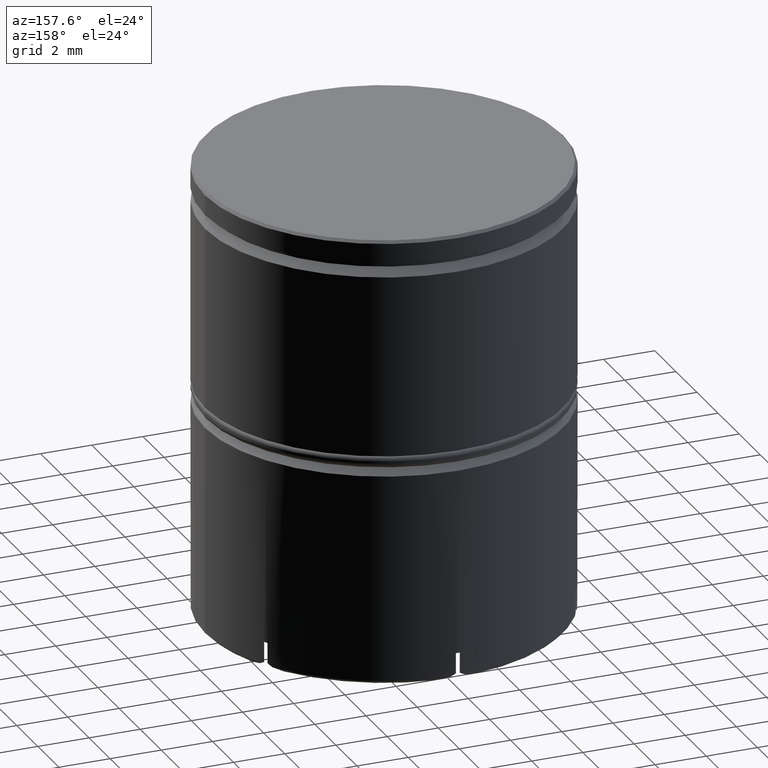
[diagram: clean part render]
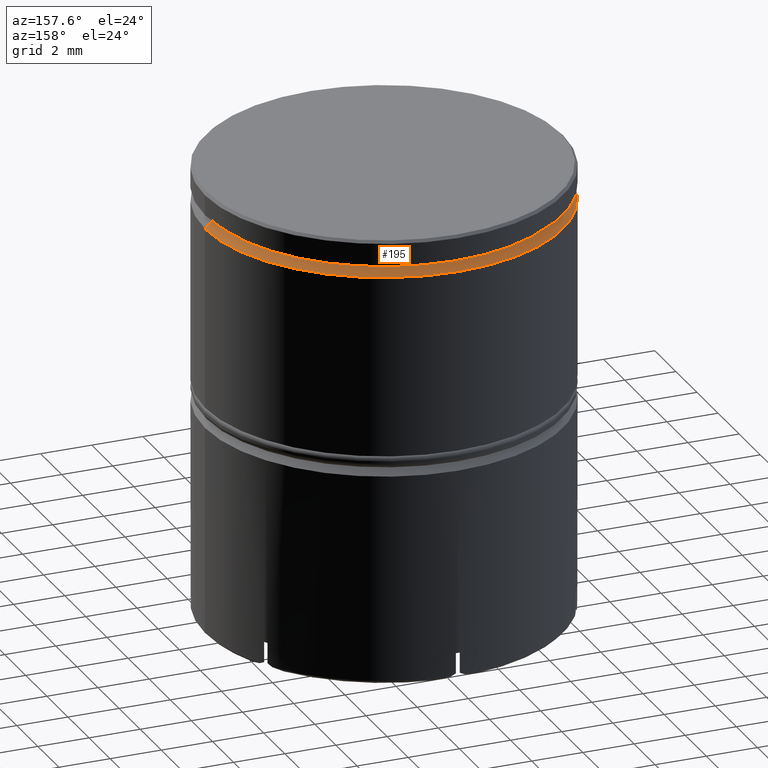
[diagram: same view with one face highlighted and labeled with its STEP entity id]
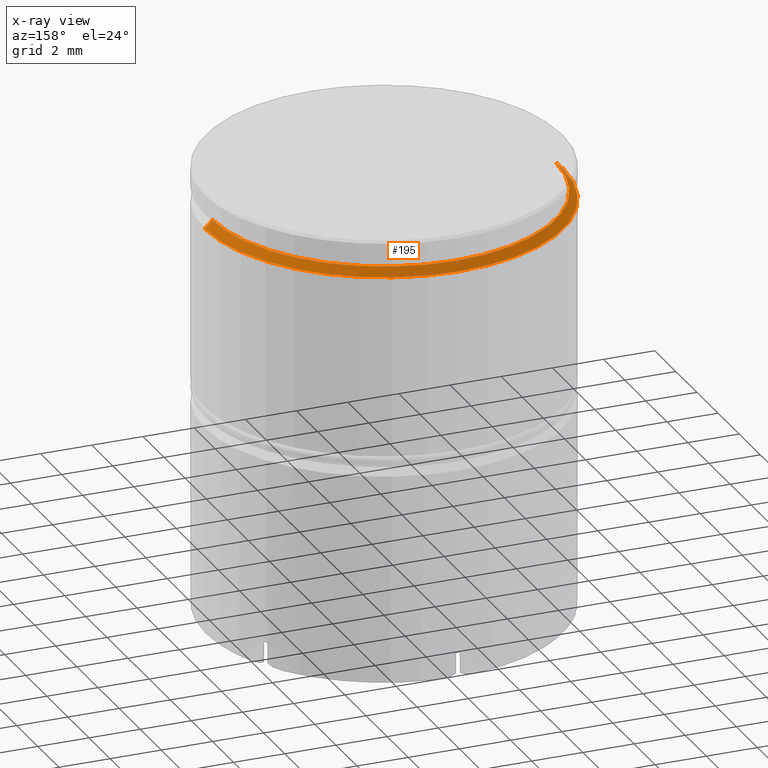
[diagram: x-ray of the same camera — body ghosted, the highlighted face saturated]
A machine part, auxiliary view. The second image highlights one B-rep face of the part: STEP entity #195.
The next image is the same camera in x-ray: the body ghosted, the highlighted face saturated — about 1% of this face is hidden behind the body in this view.
In plain terms, the highlighted conical surface has half-angle 45 deg.
Its self-contained STEP definition (entity closure, byte-faithful):
#30 = CARTESIAN_POINT ( 'NONE',  ( -6.700000000000001066, 8.205133554287267548E-16, -1.125000000000000222 ) ) ;
#78 = DIRECTION ( 'NONE',  ( -0.000000000000000000, -0.000000000000000000, 1.000000000000000000 ) ) ;
#98 = CONICAL_SURFACE ( 'NONE', #1103, 6.699999999999997513, 0.7853981633974453924 ) ;
#195 = ADVANCED_FACE ( 'NONE', ( #927 ), #98, .T. ) ;
#244 = CARTESIAN_POINT ( 'NONE',  ( 6.699999999999997513, 8.205133554287261632E-16, -1.125000000000000222 ) ) ;
#329 = ORIENTED_EDGE ( 'NONE', *, *, #502, .F. ) ;
#330 = CARTESIAN_POINT ( 'NONE',  ( -6.699999999999997513, 0.000000000000000000, -1.125000000000000222 ) ) ;
#341 = VERTEX_POINT ( 'NONE', #1414 ) ;
#370 = AXIS2_PLACEMENT_3D ( 'NONE', #1057, #78, #554 ) ;
#381 = DIRECTION ( 'NONE',  ( 0.000000000000000000, 0.000000000000000000, -1.000000000000000000 ) ) ;
#420 = CARTESIAN_POINT ( 'NONE',  ( 6.700000000000001066, 0.000000000000000000, -1.125000000000000222 ) ) ;
#491 = EDGE_CURVE ( 'NONE', #1169, #1589, #1084, .T. ) ;
#502 = EDGE_CURVE ( 'NONE', #1589, #341, #703, .T. ) ;
#536 = ORIENTED_EDGE ( 'NONE', *, *, #674, .F. ) ;
#554 = DIRECTION ( 'NONE',  ( 1.000000000000000000, 0.000000000000000000, 0.000000000000000000 ) ) ;
#586 = VECTOR ( 'NONE', #736, 1000.000000000000114 ) ;
#641 = DIRECTION ( 'NONE',  ( 1.000000000000000000, 0.000000000000000000, 0.000000000000000000 ) ) ;
#674 = EDGE_CURVE ( 'NONE', #341, #1112, #1031, .T. ) ;
#703 = LINE ( 'NONE', #330, #586 ) ;
#736 = DIRECTION ( 'NONE',  ( -0.7071067811865455743, 0.000000000000000000, -0.7071067811865495711 ) ) ;
#762 = DIRECTION ( 'NONE',  ( 0.7071067811865455743, 8.659560562354906974E-17, -0.7071067811865495711 ) ) ;
#830 = CARTESIAN_POINT ( 'NONE',  ( 0.000000000000000000, 0.000000000000000000, -1.125000000000000222 ) ) ;
#833 = AXIS2_PLACEMENT_3D ( 'NONE', #1391, #381, #641 ) ;
#846 = ORIENTED_EDGE ( 'NONE', *, *, #491, .F. ) ;
#927 = FACE_OUTER_BOUND ( 'NONE', #1450, .T. ) ;
#975 = EDGE_CURVE ( 'NONE', #1169, #1112, #1375, .T. ) ;
#1027 = CARTESIAN_POINT ( 'NONE',  ( 7.000000000000000888, 0.000000000000000000, -1.425000000000005151 ) ) ;
#1031 = CIRCLE ( 'NONE', #833, 7.000000000000000888 ) ;
#1048 = DIRECTION ( 'NONE',  ( -1.000000000000000000, 0.000000000000000000, 0.000000000000000000 ) ) ;
#1057 = CARTESIAN_POINT ( 'NONE',  ( 0.000000000000000000, 0.000000000000000000, -1.125000000000000222 ) ) ;
#1084 = CIRCLE ( 'NONE', #370, 6.700000000000001066 ) ;
#1103 = AXIS2_PLACEMENT_3D ( 'NONE', #830, #1458, #1048 ) ;
#1112 = VERTEX_POINT ( 'NONE', #1027 ) ;
#1169 = VERTEX_POINT ( 'NONE', #420 ) ;
#1375 = LINE ( 'NONE', #244, #1623 ) ;
#1391 = CARTESIAN_POINT ( 'NONE',  ( 0.000000000000000000, 0.000000000000000000, -1.425000000000005151 ) ) ;
#1414 = CARTESIAN_POINT ( 'NONE',  ( -7.000000000000000888, 8.572527594031474176E-16, -1.425000000000005151 ) ) ;
#1419 = ORIENTED_EDGE ( 'NONE', *, *, #975, .T. ) ;
#1450 = EDGE_LOOP ( 'NONE', ( #846, #1419, #536, #329 ) ) ;
#1458 = DIRECTION ( 'NONE',  ( 0.000000000000000000, 0.000000000000000000, -1.000000000000000000 ) ) ;
#1589 = VERTEX_POINT ( 'NONE', #30 ) ;
#1623 = VECTOR ( 'NONE', #762, 1000.000000000000114 ) ;